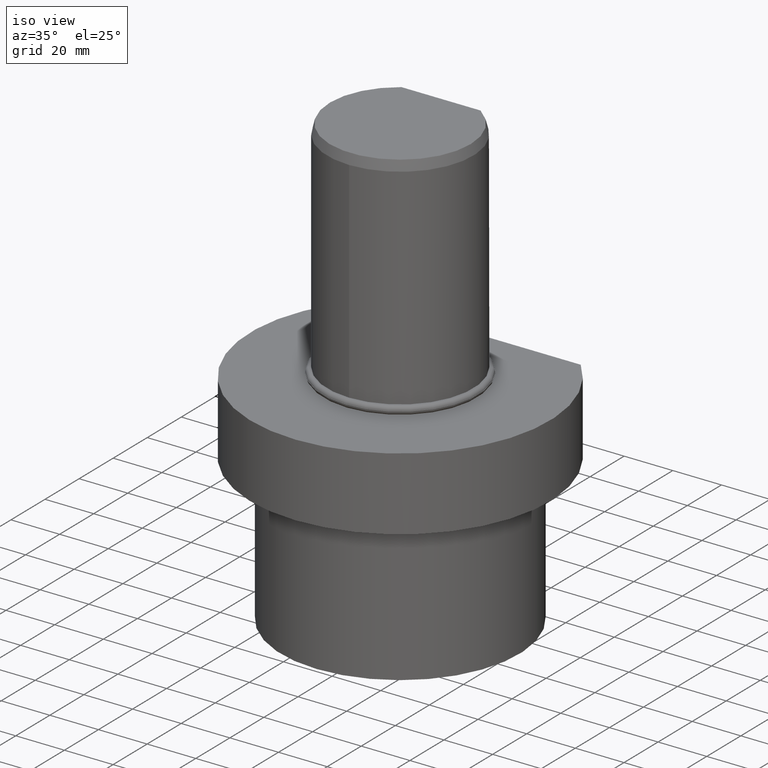
[diagram: clean part render]
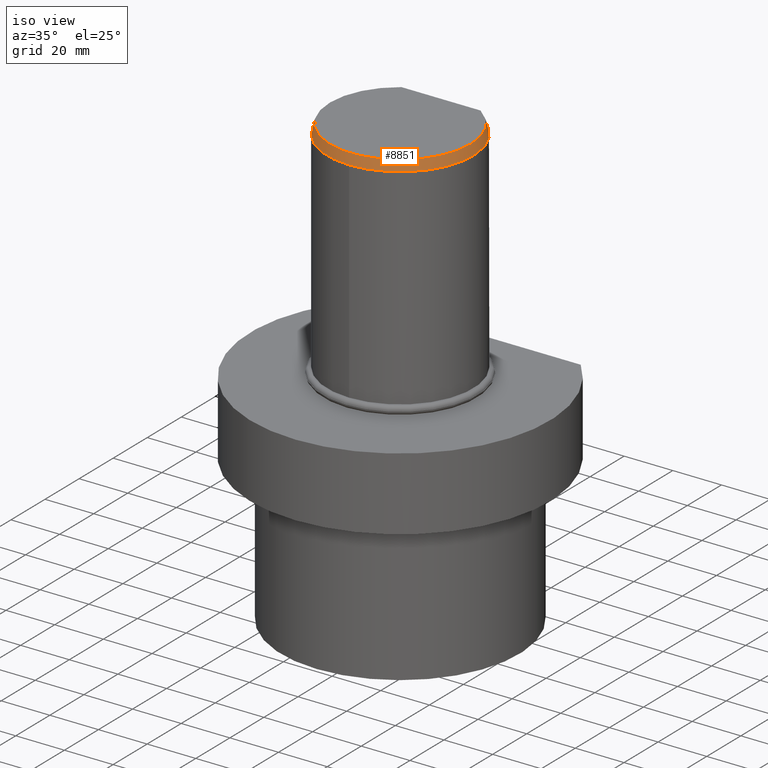
[diagram: same view with one face highlighted and labeled with its STEP entity id]
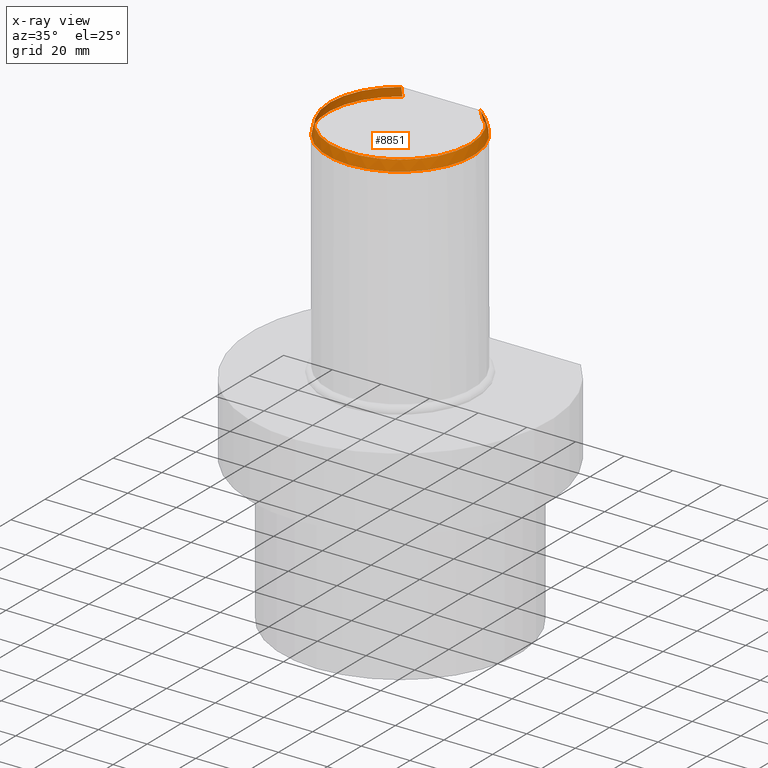
[diagram: x-ray of the same camera — body ghosted, the highlighted face saturated]
A machine part, iso view. The second image highlights one B-rep face of the part: STEP entity #8851.
The next image is the same camera in x-ray: the body ghosted, the highlighted face saturated — about 0% of this face is hidden behind the body in this view.
In plain terms, the highlighted conical surface has half-angle 15 deg.
Its self-contained STEP definition (entity closure, byte-faithful):
#221 = CARTESIAN_POINT ( 'NONE',  ( 16.41993869424759822, 24.45877572945780187, 92.01987647595299791 ) ) ;
#760 = ORIENTED_EDGE ( 'NONE', *, *, #9213, .F. ) ;
#906 = CARTESIAN_POINT ( 'NONE',  ( 16.58312395177710030, 25.00000000000000000, 90.00000000000000000 ) ) ;
#909 = EDGE_CURVE ( 'NONE', #1775, #8819, #1460, .T. ) ;
#1460 = B_SPLINE_CURVE_WITH_KNOTS ( 'NONE', 2,
 ( #7772, #221, #2543 ),
 .UNSPECIFIED., .F., .F.,
 ( 3, 3 ),
 ( 0.000000000000000000, 0.4153946153076609749 ),
 .UNSPECIFIED. ) ;
#1530 = DIRECTION ( 'NONE',  ( 4.440892098500630106E-16, 1.224646799147350002E-16, 1.000000000000000000 ) ) ;
#1658 = DIRECTION ( 'NONE',  ( -4.440892098500630106E-16, -1.224646799147350002E-16, -1.000000000000000000 ) ) ;
#1775 = VERTEX_POINT ( 'NONE', #8936 ) ;
#1954 = VERTEX_POINT ( 'NONE', #9853 ) ;
#2543 = CARTESIAN_POINT ( 'NONE',  ( 16.58312395177710030, 25.00000000000000000, 90.00000000000000000 ) ) ;
#2677 = CARTESIAN_POINT ( 'NONE',  ( -16.58312395177700083, 25.00000000000000000, 90.00000000000000000 ) ) ;
#3780 = DIRECTION ( 'NONE',  ( -1.608122649676639066E-16, -1.000000000000000000, 0.000000000000000000 ) ) ;
#4057 = EDGE_LOOP ( 'NONE', ( #4933, #5063, #760, #9188 ) ) ;
#4608 = CIRCLE ( 'NONE', #12439, 30.00000000000000000 ) ;
#4733 = DIRECTION ( 'NONE',  ( -1.608122649676639805E-16, -1.000000000000000000, 0.000000000000000000 ) ) ;
#4933 = ORIENTED_EDGE ( 'NONE', *, *, #909, .F. ) ;
#5063 = ORIENTED_EDGE ( 'NONE', *, *, #11157, .T. ) ;
#5714 = CARTESIAN_POINT ( 'NONE',  ( 4.174438572590589854E-14, 1.151167991198510077E-14, 94.00000000000000000 ) ) ;
#5761 = AXIS2_PLACEMENT_3D ( 'NONE', #9132, #1658, #10383 ) ;
#6428 = EDGE_CURVE ( 'NONE', #6689, #8819, #4608, .T. ) ;
#6529 = CARTESIAN_POINT ( 'NONE',  ( -16.58312395177700083, 25.00000000000000000, 90.00000000000000000 ) ) ;
#6689 = VERTEX_POINT ( 'NONE', #6529 ) ;
#6811 = CARTESIAN_POINT ( 'NONE',  ( 3.996802888650559759E-14, 1.102182119232619962E-14, 90.00000000000000000 ) ) ;
#6953 = B_SPLINE_CURVE_WITH_KNOTS ( 'NONE', 2,
 ( #2677, #9338, #10368 ),
 .UNSPECIFIED., .F., .F.,
 ( 3, 3 ),
 ( 0.000000000000000000, 0.4153946153076609749 ),
 .UNSPECIFIED. ) ;
#7772 = CARTESIAN_POINT ( 'NONE',  ( 16.25675343673379913, 23.92820323027550344, 94.00000000000000000 ) ) ;
#7835 = DIRECTION ( 'NONE',  ( -4.440892098500630106E-16, -1.224646799147350002E-16, -1.000000000000000000 ) ) ;
#8246 = CONICAL_SURFACE ( 'NONE', #5761, 29.46410161513779968, 0.2617993877991492968 ) ;
#8819 = VERTEX_POINT ( 'NONE', #906 ) ;
#8851 = ADVANCED_FACE ( 'Defeature completata1_45', ( #10180 ), #8246, .T. ) ;
#8936 = CARTESIAN_POINT ( 'NONE',  ( 16.25675343673379913, 23.92820323027550344, 94.00000000000000000 ) ) ;
#9132 = CARTESIAN_POINT ( 'NONE',  ( 4.085620730620579855E-14, 1.126675055215559892E-14, 92.00000000000000000 ) ) ;
#9183 = CIRCLE ( 'NONE', #9859, 28.92820323027549989 ) ;
#9188 = ORIENTED_EDGE ( 'NONE', *, *, #6428, .T. ) ;
#9213 = EDGE_CURVE ( 'NONE', #6689, #1954, #6953, .T. ) ;
#9338 = CARTESIAN_POINT ( 'NONE',  ( -16.41993869424750230, 24.45877572945780187, 92.01987647595299791 ) ) ;
#9853 = CARTESIAN_POINT ( 'NONE',  ( -16.25675343673369966, 23.92820323027550344, 94.00000000000000000 ) ) ;
#9859 = AXIS2_PLACEMENT_3D ( 'NONE', #5714, #7835, #3780 ) ;
#10180 = FACE_OUTER_BOUND ( 'NONE', #4057, .T. ) ;
#10368 = CARTESIAN_POINT ( 'NONE',  ( -16.25675343673369966, 23.92820323027550344, 94.00000000000000000 ) ) ;
#10383 = DIRECTION ( 'NONE',  ( -1.608122649676639805E-16, -1.000000000000000000, 0.000000000000000000 ) ) ;
#11157 = EDGE_CURVE ( 'NONE', #1775, #1954, #9183, .T. ) ;
#12439 = AXIS2_PLACEMENT_3D ( 'NONE', #6811, #1530, #4733 ) ;